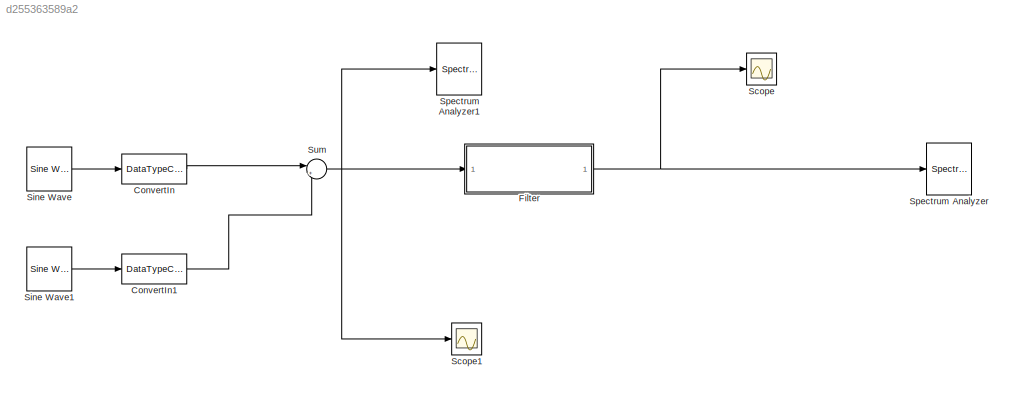
MODEL slx_d255363589a2
KIND model
CONFIG AbsTol = auto
CONFIG EnableMultiTasking = off
CONFIG FixedStep = auto
CONFIG MaxStep = auto
CONFIG MinStep = auto
CONFIG RelTol = 1e-3
CONFIG SampleTimeConstraint = Unconstrained
CONFIG Solver = VariableStepAuto
CONFIG SolverName = VariableStepAuto
CONFIG StartTime = 0.0
CONFIG StopTime = 10.0
BLOCK [DataTypeConversion] ConvertIn
  OutDataTypeStr = fixdt(1,11, 10)
  RndMeth = Nearest
BLOCK [DataTypeConversion] ConvertIn1
  OutDataTypeStr = fixdt(1,11, 10)
  RndMeth = Nearest
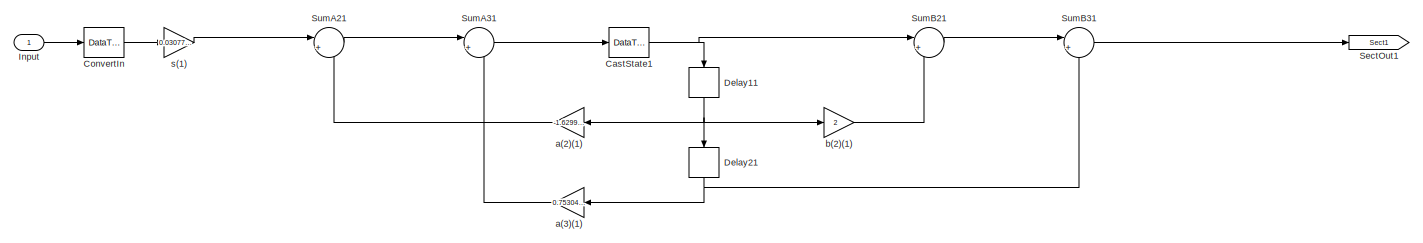
[diagram: Filter - part 1/2, left side, full height]
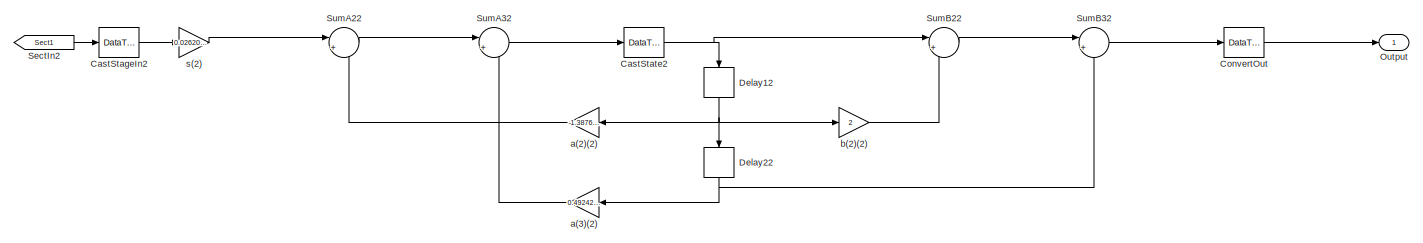
[diagram: Filter - part 2/2, right side, full height]
BLOCK [SubSystem] Filter
  ErrorFcn = dspFilterRealizedInBasicElemsAlgLoopErrFcnCallback
  Ports = [1, 1]
  RequestExecContextInheritance = off
  Tag = FilterWizardSubSystem
  UserDataPersistent = on
BLOCK [DataTypeConversion] Filter/CastStageIn2
  OutDataTypeStr = fixdt(1,32,26)
  RndMeth = Floor
BLOCK [DataTypeConversion] Filter/CastState1
  OutDataTypeStr = fixdt(1,32,31)
  RndMeth = Floor
BLOCK [DataTypeConversion] Filter/CastState2
  OutDataTypeStr = fixdt(1,32,31)
  RndMeth = Floor
BLOCK [DataTypeConversion] Filter/ConvertIn
  OutDataTypeStr = fixdt(1,12,11)
  RndMeth = Nearest
BLOCK [DataTypeConversion] Filter/ConvertOut
  OutDataTypeStr = fixdt(1,28,22)
  RndMeth = Floor
BLOCK [Delay] Filter/Delay11
  DelayLength = 1
  InitialCondition = 0
  InputPortMap = u0
  Ports = [1, 1]
BLOCK [Delay] Filter/Delay12
  DelayLength = 1
  InitialCondition = 0
  InputPortMap = u0
  Ports = [1, 1]
BLOCK [Delay] Filter/Delay21
  DelayLength = 1
  InitialCondition = 0
  InputPortMap = u0
  Ports = [1, 1]
BLOCK [Delay] Filter/Delay22
  DelayLength = 1
  InitialCondition = 0
  InputPortMap = u0
  Ports = [1, 1]
BLOCK [Inport] Filter/Input
  IconDisplay = Port number
BLOCK [Outport] Filter/Output
  IconDisplay = Port number
BLOCK [From] Filter/SectIn2
  GotoTag = Sect1
BLOCK [Goto] Filter/SectOut1
  GotoTag = Sect1
BLOCK [Sum] Filter/SumA21
  AccumDataTypeStr = fixdt(1,40,35)
  IconShape = round
  InputSameDT = off
  Inputs = |+-
  OutDataTypeStr = fixdt(1,40,35)
  Ports = [2, 1]
BLOCK [Sum] Filter/SumA22
  AccumDataTypeStr = fixdt(1,40,35)
  IconShape = round
  InputSameDT = off
  Inputs = |+-
  OutDataTypeStr = fixdt(1,40,35)
  Ports = [2, 1]
BLOCK [Sum] Filter/SumA31
  AccumDataTypeStr = fixdt(1,40,35)
  IconShape = round
  InputSameDT = off
  Inputs = |+-
  OutDataTypeStr = fixdt(1,40,35)
  Ports = [2, 1]
BLOCK [Sum] Filter/SumA32
  AccumDataTypeStr = fixdt(1,40,35)
  IconShape = round
  InputSameDT = off
  Inputs = |+-
  OutDataTypeStr = fixdt(1,40,35)
  Ports = [2, 1]
BLOCK [Sum] Filter/SumB21
  AccumDataTypeStr = fixdt(1,40,34)
  IconShape = round
  InputSameDT = off
  Inputs = |++
  OutDataTypeStr = fixdt(1,40,34)
  Ports = [2, 1]
BLOCK [Sum] Filter/SumB22
  AccumDataTypeStr = fixdt(1,40,34)
  IconShape = round
  InputSameDT = off
  Inputs = |++
  OutDataTypeStr = fixdt(1,40,34)
  Ports = [2, 1]
BLOCK [Sum] Filter/SumB31
  AccumDataTypeStr = fixdt(1,40,34)
  IconShape = round
  InputSameDT = off
  Inputs = |++
  OutDataTypeStr = fixdt(1,40,34)
  Ports = [2, 1]
BLOCK [Sum] Filter/SumB32
  AccumDataTypeStr = fixdt(1,40,34)
  IconShape = round
  InputSameDT = off
  Inputs = |++
  OutDataTypeStr = fixdt(1,40,34)
  Ports = [2, 1]
BLOCK [Gain] Filter/a(2)(1)
  Gain = -1.62993553105444322
  OutDataTypeStr = fixdt(1,48,45)
  ParamDataTypeStr = fixdt(1,16,14)
BLOCK [Gain] Filter/a(2)(2)
  Gain = -1.38761970763204578
  OutDataTypeStr = fixdt(1,48,45)
  ParamDataTypeStr = fixdt(1,16,14)
BLOCK [Gain] Filter/a(3)(1)
  Gain = 0.753040172334862756
  OutDataTypeStr = fixdt(1,48,45)
  ParamDataTypeStr = fixdt(1,16,14)
BLOCK [Gain] Filter/a(3)(2)
  Gain = 0.492422887320493108
  OutDataTypeStr = fixdt(1,48,45)
  ParamDataTypeStr = fixdt(1,16,14)
BLOCK [Gain] Filter/b(2)(1)
  Gain = 2
  OutDataTypeStr = fixdt(1,48,44)
  ParamDataTypeStr = fixdt(1,16,13)
BLOCK [Gain] Filter/b(2)(2)
  Gain = 2
  OutDataTypeStr = fixdt(1,48,44)
  ParamDataTypeStr = fixdt(1,16,13)
BLOCK [Gain] Filter/s(1)
  Gain = 0.0307761603201048527
  OutDataTypeStr = fixdt(1,32,30)
  ParamDataTypeStr = fixdt(1,16,20)
BLOCK [Gain] Filter/s(2)
  Gain = 0.0262007949221118065
  OutDataTypeStr = fixdt(1,32,30)
  ParamDataTypeStr = fixdt(1,16,20)
BLOCK [Scope] Scope
  Floating = off
  NumInputPorts = 1
  Ports = [1]
  ScopeSpecificationString = Simulink.scopes.TimeScopeBlockCfg('CurrentConfiguration', extmgr.ConfigurationSet(extmgr.Configuration('Core','General UI',true),extmgr.Configuration('Core','Source UI',true),extmgr.Configuration('Sources','WiredSimulink',true,'DataLoggingVariableName','ScopeData1'),extmgr.Configuration('Visuals','Time Domain',true,'SerializedDisplays',{struct('MinYLimReal','-0.5695','MaxYLimReal','0.69188','YLabe...<+1764ch>
BLOCK [Scope] Scope1
  Floating = off
  NumInputPorts = 1
  Ports = [1]
  ScopeSpecificationString = Simulink.scopes.TimeScopeBlockCfg('CurrentConfiguration', extmgr.ConfigurationSet(extmgr.Configuration('Core','General UI',true),extmgr.Configuration('Core','Source UI',true),extmgr.Configuration('Sources','WiredSimulink',true),extmgr.Configuration('Visuals','Time Domain',true,'SerializedDisplays',{struct('MinYLimReal','-0.51328','MaxYLimReal','1.18881','YLabelReal','','MinYLimMag','0.00000','MaxY...<+1396ch>
BLOCK [Reference] Sine Wave  REF=dspsrcs4/Sine Wave
  Ports = [0, 1]
  SourceBlock = dspsrcs4/Sine Wave
  SourceProductBaseCode = DS
  SourceProductName = DSP System Toolbox
  SourceType = Sine Wave
BLOCK [Reference] Sine Wave1  REF=dspsrcs4/Sine Wave
  Ports = [0, 1]
  SourceBlock = dspsrcs4/Sine Wave
  SourceProductBaseCode = DS
  SourceProductName = DSP System Toolbox
  SourceType = Sine Wave
BLOCK [SpectrumAnalyzer] Spectrum Analyzer
  Ports = [1]
  ScopeSpecificationString = spbscopes.SpectrumAnalyzerBlockCfg('CurrentConfiguration', extmgr.ConfigurationSet(extmgr.Configuration('Core','General UI',true),extmgr.Configuration('Core','Source UI',true),extmgr.Configuration('Sources','WiredSimulink',true),extmgr.Configuration('Visuals','Spectrum',true,'AxesProperties',struct('Color',{[0 0 0],[0 0 0]},'XColor',{[0.686274509803922 0.686274509803922 0.686274509803922],[0.68627...<+2535ch>
BLOCK [SpectrumAnalyzer] Spectrum Analyzer1
  Ports = [1]
  ScopeSpecificationString = spbscopes.SpectrumAnalyzerBlockCfg('CurrentConfiguration', extmgr.ConfigurationSet(extmgr.Configuration('Core','General UI',true),extmgr.Configuration('Core','Source UI',true),extmgr.Configuration('Sources','WiredSimulink',true),extmgr.Configuration('Visuals','Spectrum',true,'AxesProperties',struct('Color',{[0 0 0],[0 0 0]},'XColor',{[0.686274509803922 0.686274509803922 0.686274509803922],[0.68627...<+2560ch>
BLOCK [Sum] Sum
  IconShape = round
  Inputs = |++
  OutDataTypeStr = fixdt(1,12, 11)
  Ports = [2, 1]
LINE ConvertIn1:1 -> Sum:2
LINE ConvertIn:1 -> Sum:1
LINE Filter/CastStageIn2:1 -> Filter/s(2):1
NET Filter/CastState1:1 -> Filter/Delay11:1, Filter/SumB21:1
NET Filter/CastState2:1 -> Filter/Delay12:1, Filter/SumB22:1
LINE Filter/ConvertIn:1 -> Filter/s(1):1
LINE Filter/ConvertOut:1 -> Filter/Output:1
NET Filter/Delay11:1 -> Filter/Delay21:1, Filter/a(2)(1):1, Filter/b(2)(1):1
NET Filter/Delay12:1 -> Filter/Delay22:1, Filter/a(2)(2):1, Filter/b(2)(2):1
NET Filter/Delay21:1 -> Filter/SumB31:2, Filter/a(3)(1):1
NET Filter/Delay22:1 -> Filter/SumB32:2, Filter/a(3)(2):1
LINE Filter/Input:1 -> Filter/ConvertIn:1
LINE Filter/SectIn2:1 -> Filter/CastStageIn2:1
LINE Filter/SumA21:1 -> Filter/SumA31:1
LINE Filter/SumA22:1 -> Filter/SumA32:1
LINE Filter/SumA31:1 -> Filter/CastState1:1
LINE Filter/SumA32:1 -> Filter/CastState2:1
LINE Filter/SumB21:1 -> Filter/SumB31:1
LINE Filter/SumB22:1 -> Filter/SumB32:1
LINE Filter/SumB31:1 -> Filter/SectOut1:1
LINE Filter/SumB32:1 -> Filter/ConvertOut:1
LINE Filter/a(2)(1):1 -> Filter/SumA21:2
LINE Filter/a(2)(2):1 -> Filter/SumA22:2
LINE Filter/a(3)(1):1 -> Filter/SumA31:2
LINE Filter/a(3)(2):1 -> Filter/SumA32:2
LINE Filter/b(2)(1):1 -> Filter/SumB21:2
LINE Filter/b(2)(2):1 -> Filter/SumB22:2
LINE Filter/s(1):1 -> Filter/SumA21:1
LINE Filter/s(2):1 -> Filter/SumA22:1
NET Filter:1 -> Scope:1, Spectrum Analyzer:1
LINE Sine Wave1:1 -> ConvertIn1:1
LINE Sine Wave:1 -> ConvertIn:1
NET Sum:1 -> Filter:1, Scope1:1, Spectrum Analyzer1:1
note: NET lines group one-source signal fan-out (src -> all destinations, sorted); 1:1 wires keep LINE
